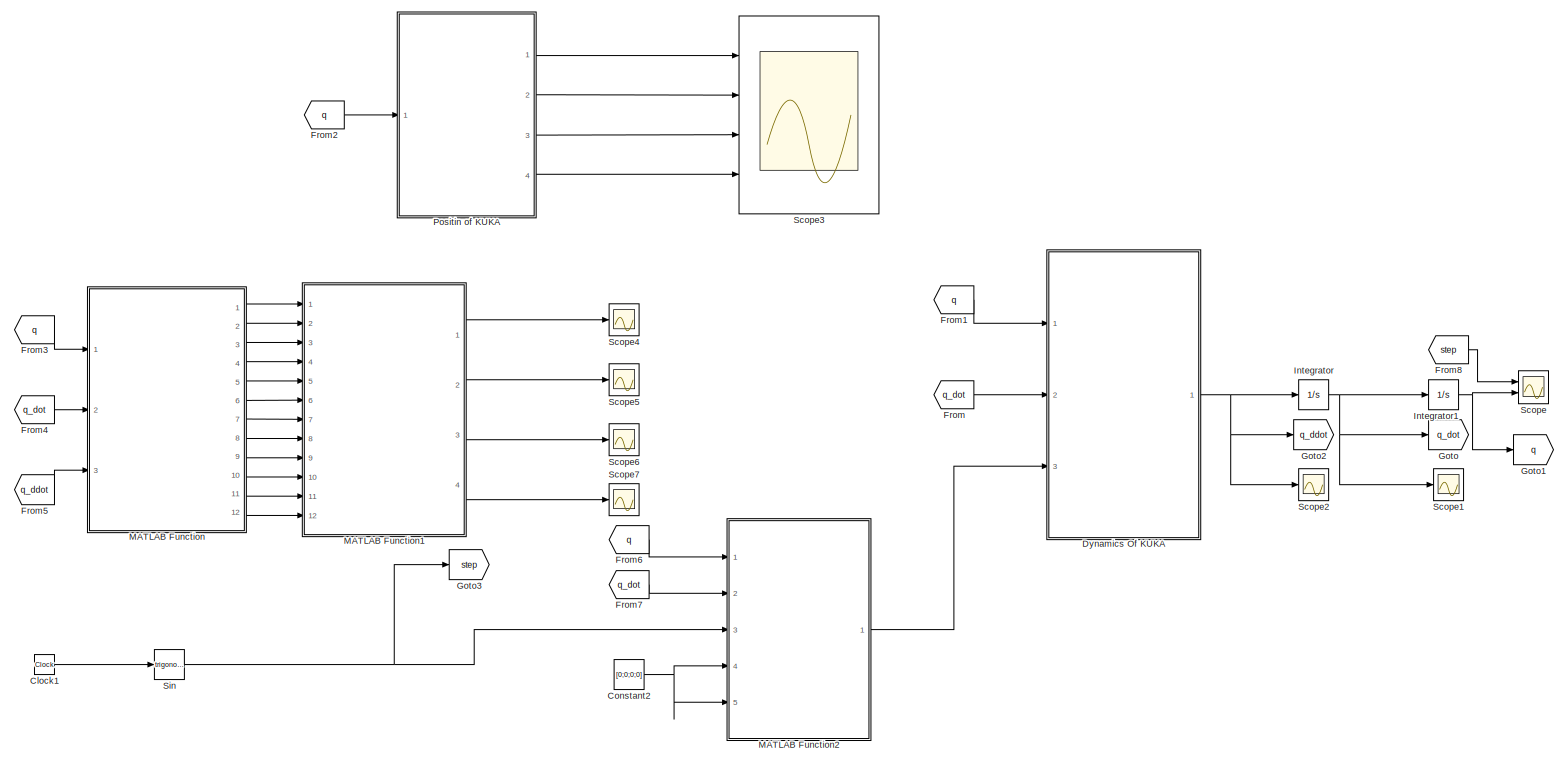
[diagram: root canvas - part 1/2, most of the canvas]
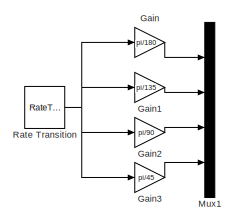
[diagram: root canvas - part 2/2, bottom left region]
MODEL slx_0f7cdd0545b8
KIND model
CONFIG AbsTol = auto
CONFIG EnableMultiTasking = off
CONFIG FixedStep = auto
CONFIG MaxStep = auto
CONFIG MinStep = auto
CONFIG RelTol = 1e-3
CONFIG SampleTimeConstraint = Unconstrained
CONFIG Solver = VariableStepAuto
CONFIG SolverName = VariableStepAuto
CONFIG StartTime = 0.0
CONFIG StopTime = 20
WORKSPACE source: MAT-file member
WORKSPACE MCOS: class17 (value not decoded)
WORKSPACE MCOS: class17 (value not decoded)
WORKSPACE MCOS: class17 (value not decoded)
BLOCK [Clock] Clock1
BLOCK [Constant] Constant2
  Value = [0;0;0;0]
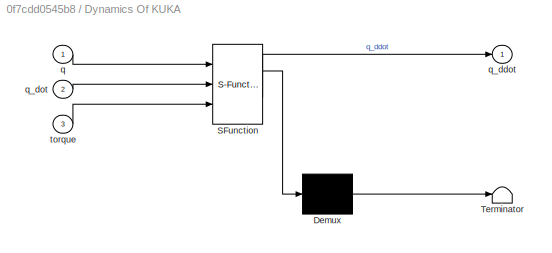
BLOCK [SubSystem] Dynamics Of KUKA
  ErrorFcn = Stateflow.Translate.translate
  PermitHierarchicalResolution = ExplicitOnly
  Ports = [3, 1]
  RequestExecContextInheritance = off
  SFBlockType = MATLAB Function
  TreatAsAtomicUnit = on
BLOCK [Demux] Dynamics Of KUKA/ Demux 
  Outputs = 1
  Ports = [1, 1]
BLOCK [S-Function] Dynamics Of KUKA/ SFunction 
  EnableBusSupport = on
  FunctionName = sf_sfun
  PortCounts = [3 2]
  Ports = [3, 2]
  SFcnIsStateOwnerBlock = off
  SFunctionDeploymentMode = off
  Tag = Stateflow S-Function kuka_sim 2
BLOCK [Terminator] Dynamics Of KUKA/ Terminator 
BLOCK [Inport] Dynamics Of KUKA/q
  IconDisplay = Port number
BLOCK [Outport] Dynamics Of KUKA/q_ddot
  IconDisplay = Port number
BLOCK [Inport] Dynamics Of KUKA/q_dot
  IconDisplay = Port number
  Port = 2
BLOCK [Inport] Dynamics Of KUKA/torque
  IconDisplay = Port number
  Port = 3
BLOCK [From] From
  GotoTag = q_dot
BLOCK [From] From1
  GotoTag = q
BLOCK [From] From2
  GotoTag = q
BLOCK [From] From3
  GotoTag = q
BLOCK [From] From4
  GotoTag = q_dot
BLOCK [From] From5
  GotoTag = q_ddot
BLOCK [From] From6
  GotoTag = q
BLOCK [From] From7
  GotoTag = q_dot
BLOCK [From] From8
  GotoTag = step
BLOCK [Gain] Gain
  Gain = pi/180
  OutDataTypeStr = Inherit: Inherit via internal rule
  ParamDataTypeStr = Inherit: Inherit via internal rule
  SaturateOnIntegerOverflow = off
BLOCK [Gain] Gain1
  Gain = pi/135
  OutDataTypeStr = Inherit: Inherit via internal rule
  ParamDataTypeStr = Inherit: Inherit via internal rule
  SaturateOnIntegerOverflow = off
BLOCK [Gain] Gain2
  Gain = pi/90
  OutDataTypeStr = Inherit: Inherit via internal rule
  ParamDataTypeStr = Inherit: Inherit via internal rule
  SaturateOnIntegerOverflow = off
BLOCK [Gain] Gain3
  Gain = pi/45
  OutDataTypeStr = Inherit: Inherit via internal rule
  ParamDataTypeStr = Inherit: Inherit via internal rule
  SaturateOnIntegerOverflow = off
BLOCK [Goto] Goto
  GotoTag = q_dot
BLOCK [Goto] Goto1
  GotoTag = q
BLOCK [Goto] Goto2
  GotoTag = q_ddot
BLOCK [Goto] Goto3
  GotoTag = step
BLOCK [Integrator] Integrator
  InitialCondition = [0;0;0;0;]
  Ports = [1, 1]
BLOCK [Integrator] Integrator1
  InitialCondition = [1;1;1;1]
  Ports = [1, 1]
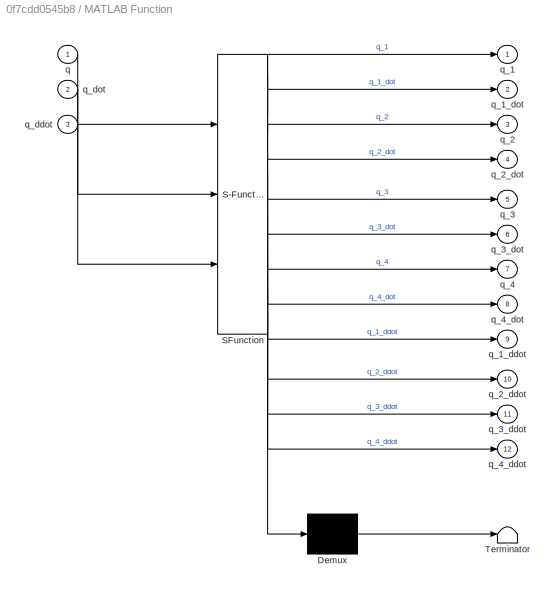
BLOCK [SubSystem] MATLAB Function
  ErrorFcn = Stateflow.Translate.translate
  PermitHierarchicalResolution = ExplicitOnly
  Ports = [3, 12]
  RequestExecContextInheritance = off
  SFBlockType = MATLAB Function
  TreatAsAtomicUnit = on
BLOCK [Demux] MATLAB Function/ Demux 
  Outputs = 1
  Ports = [1, 1]
BLOCK [S-Function] MATLAB Function/ SFunction 
  EnableBusSupport = on
  FunctionName = sf_sfun
  PortCounts = [3 13]
  Ports = [3, 13]
  SFcnIsStateOwnerBlock = off
  SFunctionDeploymentMode = off
  Tag = Stateflow S-Function kuka_sim 3
BLOCK [Terminator] MATLAB Function/ Terminator 
BLOCK [Inport] MATLAB Function/q
  IconDisplay = Port number
BLOCK [Outport] MATLAB Function/q_1
  IconDisplay = Port number
BLOCK [Outport] MATLAB Function/q_1_ddot
  IconDisplay = Port number
  Port = 9
BLOCK [Outport] MATLAB Function/q_1_dot
  IconDisplay = Port number
  Port = 2
BLOCK [Outport] MATLAB Function/q_2
  IconDisplay = Port number
  Port = 3
BLOCK [Outport] MATLAB Function/q_2_ddot
  IconDisplay = Port number
  Port = 10
BLOCK [Outport] MATLAB Function/q_2_dot
  IconDisplay = Port number
  Port = 4
BLOCK [Outport] MATLAB Function/q_3
  IconDisplay = Port number
  Port = 5
BLOCK [Outport] MATLAB Function/q_3_ddot
  IconDisplay = Port number
  Port = 11
BLOCK [Outport] MATLAB Function/q_3_dot
  IconDisplay = Port number
  Port = 6
BLOCK [Outport] MATLAB Function/q_4
  IconDisplay = Port number
  Port = 7
BLOCK [Outport] MATLAB Function/q_4_ddot
  IconDisplay = Port number
  Port = 12
BLOCK [Outport] MATLAB Function/q_4_dot
  IconDisplay = Port number
  Port = 8
BLOCK [Inport] MATLAB Function/q_ddot
  IconDisplay = Port number
  Port = 3
BLOCK [Inport] MATLAB Function/q_dot
  IconDisplay = Port number
  Port = 2
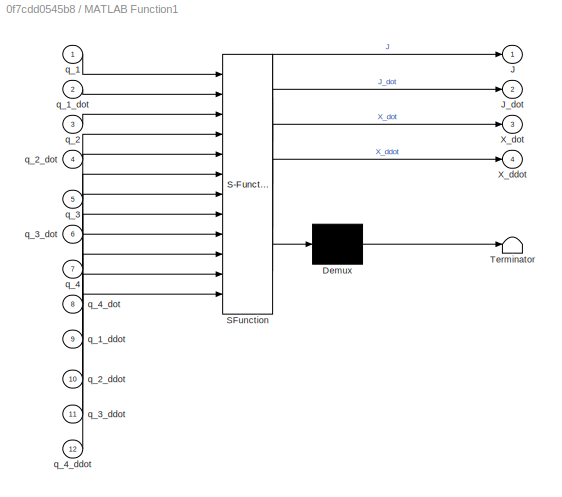
BLOCK [SubSystem] MATLAB Function1
  ErrorFcn = Stateflow.Translate.translate
  PermitHierarchicalResolution = ExplicitOnly
  Ports = [12, 4]
  RequestExecContextInheritance = off
  SFBlockType = MATLAB Function
  TreatAsAtomicUnit = on
BLOCK [Demux] MATLAB Function1/ Demux 
  Outputs = 1
  Ports = [1, 1]
BLOCK [S-Function] MATLAB Function1/ SFunction 
  EnableBusSupport = on
  FunctionName = sf_sfun
  PortCounts = [12 5]
  Ports = [12, 5]
  SFcnIsStateOwnerBlock = off
  SFunctionDeploymentMode = off
  Tag = Stateflow S-Function kuka_sim 4
BLOCK [Terminator] MATLAB Function1/ Terminator 
BLOCK [Outport] MATLAB Function1/J
  IconDisplay = Port number
BLOCK [Outport] MATLAB Function1/J_dot
  IconDisplay = Port number
  Port = 2
BLOCK [Outport] MATLAB Function1/X_ddot
  IconDisplay = Port number
  Port = 4
BLOCK [Outport] MATLAB Function1/X_dot
  IconDisplay = Port number
  Port = 3
BLOCK [Inport] MATLAB Function1/q_1
  IconDisplay = Port number
BLOCK [Inport] MATLAB Function1/q_1_ddot
  IconDisplay = Port number
  Port = 9
BLOCK [Inport] MATLAB Function1/q_1_dot
  IconDisplay = Port number
  Port = 2
BLOCK [Inport] MATLAB Function1/q_2
  IconDisplay = Port number
  Port = 3
BLOCK [Inport] MATLAB Function1/q_2_ddot
  IconDisplay = Port number
  Port = 10
BLOCK [Inport] MATLAB Function1/q_2_dot
  IconDisplay = Port number
  Port = 4
BLOCK [Inport] MATLAB Function1/q_3
  IconDisplay = Port number
  Port = 5
BLOCK [Inport] MATLAB Function1/q_3_ddot
  IconDisplay = Port number
  Port = 11
BLOCK [Inport] MATLAB Function1/q_3_dot
  IconDisplay = Port number
  Port = 6
BLOCK [Inport] MATLAB Function1/q_4
  IconDisplay = Port number
  Port = 7
BLOCK [Inport] MATLAB Function1/q_4_ddot
  IconDisplay = Port number
  Port = 12
BLOCK [Inport] MATLAB Function1/q_4_dot
  IconDisplay = Port number
  Port = 8
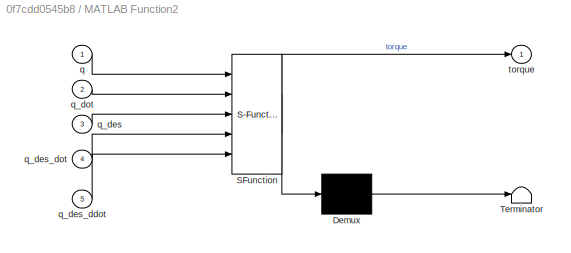
BLOCK [SubSystem] MATLAB Function2
  ErrorFcn = Stateflow.Translate.translate
  PermitHierarchicalResolution = ExplicitOnly
  Ports = [5, 1]
  RequestExecContextInheritance = off
  SFBlockType = MATLAB Function
  TreatAsAtomicUnit = on
BLOCK [Demux] MATLAB Function2/ Demux 
  Outputs = 1
  Ports = [1, 1]
BLOCK [S-Function] MATLAB Function2/ SFunction 
  EnableBusSupport = on
  FunctionName = sf_sfun
  PortCounts = [5 2]
  Ports = [5, 2]
  SFcnIsStateOwnerBlock = off
  SFunctionDeploymentMode = off
  Tag = Stateflow S-Function kuka_sim 5
BLOCK [Terminator] MATLAB Function2/ Terminator 
BLOCK [Inport] MATLAB Function2/q
  IconDisplay = Port number
BLOCK [Inport] MATLAB Function2/q_des
  IconDisplay = Port number
  Port = 3
BLOCK [Inport] MATLAB Function2/q_des_ddot
  IconDisplay = Port number
  Port = 5
BLOCK [Inport] MATLAB Function2/q_des_dot
  IconDisplay = Port number
  Port = 4
BLOCK [Inport] MATLAB Function2/q_dot
  IconDisplay = Port number
  Port = 2
BLOCK [Outport] MATLAB Function2/torque
  IconDisplay = Port number
BLOCK [Mux] Mux1
  DisplayOption = bar
  Ports = [4, 1]
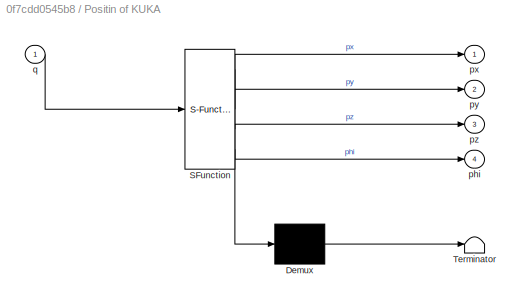
BLOCK [SubSystem] Positin of KUKA 
  ErrorFcn = Stateflow.Translate.translate
  PermitHierarchicalResolution = ExplicitOnly
  Ports = [1, 4]
  RequestExecContextInheritance = off
  SFBlockType = MATLAB Function
  TreatAsAtomicUnit = on
BLOCK [Demux] Positin of KUKA / Demux 
  Outputs = 1
  Ports = [1, 1]
BLOCK [S-Function] Positin of KUKA / SFunction 
  EnableBusSupport = on
  FunctionName = sf_sfun
  PortCounts = [1 5]
  Ports = [1, 5]
  SFcnIsStateOwnerBlock = off
  SFunctionDeploymentMode = off
  Tag = Stateflow S-Function kuka_sim 1
BLOCK [Terminator] Positin of KUKA / Terminator 
BLOCK [Outport] Positin of KUKA /phi
  IconDisplay = Port number
  Port = 4
BLOCK [Outport] Positin of KUKA /px
  IconDisplay = Port number
BLOCK [Outport] Positin of KUKA /py
  IconDisplay = Port number
  Port = 2
BLOCK [Outport] Positin of KUKA /pz
  IconDisplay = Port number
  Port = 3
BLOCK [Inport] Positin of KUKA /q
  IconDisplay = Port number
BLOCK [RateTransition] Rate Transition
  OutPortSampleTime = 4
BLOCK [Scope] Scope
  Floating = off
  NumInputPorts = 2
  Ports = [2]
  ScopeSpecificationString = Simulink.scopes.TimeScopeBlockCfg('CurrentConfiguration', extmgr.ConfigurationSet(extmgr.Configuration('Core','General UI',true,'FigureColor',[0.862745098039216 0.862745098039216 0.862745098039216]),extmgr.Configuration('Core','Source UI',true),extmgr.Configuration('Sources','WiredSimulink',true,'DataLoggingSaveFormat','Array','DataLoggingDecimation','1','DataLoggingDecimateData',true,'DataLogging...<+2360ch>
BLOCK [Scope] Scope1
  Floating = off
  NumInputPorts = 1
  Ports = [1]
  ScopeSpecificationString = Simulink.scopes.TimeScopeBlockCfg('CurrentConfiguration', extmgr.ConfigurationSet(extmgr.Configuration('Core','General UI',true,'FigureColor',[0.862745098039216 0.862745098039216 0.862745098039216]),extmgr.Configuration('Core','Source UI',true),extmgr.Configuration('Sources','WiredSimulink',true,'DataLoggingVariableName','ScopeData2','DataLoggingSaveFormat','Array','DataLoggingDecimation','1','Dat...<+2118ch>
BLOCK [Scope] Scope2
  Floating = off
  NumInputPorts = 1
  Ports = [1]
  ScopeSpecificationString = Simulink.scopes.TimeScopeBlockCfg('CurrentConfiguration', extmgr.ConfigurationSet(extmgr.Configuration('Core','General UI',true,'FigureColor',[0.862745098039216 0.862745098039216 0.862745098039216]),extmgr.Configuration('Core','Source UI',true),extmgr.Configuration('Sources','WiredSimulink',true,'DataLoggingSaveFormat','Array','DataLoggingDecimation','1','DataLoggingDecimateData',true),extmgr.Conf...<+2117ch>
BLOCK [Scope] Scope3
  Floating = off
  NumInputPorts = 4
  Ports = [4]
  ScopeSpecificationString = Simulink.scopes.TimeScopeBlockCfg('CurrentConfiguration', extmgr.ConfigurationSet(extmgr.Configuration('Core','General UI',true),extmgr.Configuration('Core','Source UI',true),extmgr.Configuration('Sources','WiredSimulink',true,'DataLoggingVariableName','ScopeData1'),extmgr.Configuration('Visuals','Time Domain',true,'SerializedDisplays',{struct('MinYLimReal','-17.12002','MaxYLimReal','150.08049','Y...<+1618ch>
BLOCK [Scope] Scope4
  Floating = off
  NumInputPorts = 1
  Ports = [1]
  ScopeSpecificationString = Simulink.scopes.TimeScopeBlockCfg('CurrentConfiguration', extmgr.ConfigurationSet(extmgr.Configuration('Core','General UI',true,'FigureColor',[0.862745098039216 0.862745098039216 0.862745098039216]),extmgr.Configuration('Core','Source UI',true),extmgr.Configuration('Sources','WiredSimulink',true,'DataLoggingSaveFormat','Array','DataLoggingDecimation','1','DataLoggingDecimateData',true,'DataLogging...<+2829ch>
BLOCK [Scope] Scope5
  Floating = off
  NumInputPorts = 1
  Ports = [1]
  ScopeSpecificationString = Simulink.scopes.TimeScopeBlockCfg('CurrentConfiguration', extmgr.ConfigurationSet(extmgr.Configuration('Core','General UI',true,'FigureColor',[0.862745098039216 0.862745098039216 0.862745098039216]),extmgr.Configuration('Core','Source UI',true),extmgr.Configuration('Sources','WiredSimulink',true,'DataLoggingSaveFormat','Array','DataLoggingDecimation','1','DataLoggingDecimateData',true,'DataLogging...<+2877ch>
BLOCK [Scope] Scope6
  Floating = off
  NumInputPorts = 1
  Ports = [1]
  ScopeSpecificationString = Simulink.scopes.TimeScopeBlockCfg('CurrentConfiguration', extmgr.ConfigurationSet(extmgr.Configuration('Core','General UI',true,'FigureColor',[0.862745098039216 0.862745098039216 0.862745098039216]),extmgr.Configuration('Core','Source UI',true),extmgr.Configuration('Sources','WiredSimulink',true,'DataLoggingSaveFormat','Array','DataLoggingDecimation','1','DataLoggingDecimateData',true,'DataLogging...<+2324ch>
BLOCK [Scope] Scope7
  Floating = off
  NumInputPorts = 1
  Ports = [1]
  ScopeSpecificationString = Simulink.scopes.TimeScopeBlockCfg('CurrentConfiguration', extmgr.ConfigurationSet(extmgr.Configuration('Core','General UI',true,'FigureColor',[0.862745098039216 0.862745098039216 0.862745098039216]),extmgr.Configuration('Core','Source UI',true),extmgr.Configuration('Sources','WiredSimulink',true,'DataLoggingSaveFormat','Array','DataLoggingDecimation','1','DataLoggingDecimateData',true,'DataLogging...<+2311ch>
BLOCK [Trigonometry] Sin
  Ports = [1, 1]
LINE Clock1:1 -> Sin:1
NET Constant2:1 -> MATLAB Function2:4, MATLAB Function2:5
NET Dynamics Of KUKA:1 -> Goto2:1, Integrator:1, Scope2:1
LINE From1:1 -> Dynamics Of KUKA:1
LINE From2:1 -> Positin of KUKA :1
LINE From3:1 -> MATLAB Function:1
LINE From4:1 -> MATLAB Function:2
LINE From5:1 -> MATLAB Function:3
LINE From6:1 -> MATLAB Function2:1
LINE From7:1 -> MATLAB Function2:2
LINE From8:1 -> Scope:1
LINE From:1 -> Dynamics Of KUKA:2
LINE Gain1:1 -> Mux1:2
LINE Gain2:1 -> Mux1:3
LINE Gain3:1 -> Mux1:4
LINE Gain:1 -> Mux1:1
NET Integrator1:1 -> Goto1:1, Scope:2
NET Integrator:1 -> Goto:1, Integrator1:1, Scope1:1
LINE MATLAB Function1:1 -> Scope4:1
LINE MATLAB Function1:2 -> Scope5:1
LINE MATLAB Function1:3 -> Scope6:1
LINE MATLAB Function1:4 -> Scope7:1
LINE MATLAB Function2:1 -> Dynamics Of KUKA:3
LINE MATLAB Function:1 -> MATLAB Function1:1
LINE MATLAB Function:10 -> MATLAB Function1:10
LINE MATLAB Function:11 -> MATLAB Function1:11
LINE MATLAB Function:12 -> MATLAB Function1:12
LINE MATLAB Function:2 -> MATLAB Function1:2
LINE MATLAB Function:3 -> MATLAB Function1:3
LINE MATLAB Function:4 -> MATLAB Function1:4
LINE MATLAB Function:5 -> MATLAB Function1:5
LINE MATLAB Function:6 -> MATLAB Function1:6
LINE MATLAB Function:7 -> MATLAB Function1:7
LINE MATLAB Function:8 -> MATLAB Function1:8
LINE MATLAB Function:9 -> MATLAB Function1:9
LINE Positin of KUKA :1 -> Scope3:1
LINE Positin of KUKA :2 -> Scope3:2
LINE Positin of KUKA :3 -> Scope3:3
LINE Positin of KUKA :4 -> Scope3:4
NET Rate Transition:1 -> Gain1:1, Gain2:1, Gain3:1, Gain:1
NET Sin:1 -> Goto3:1, MATLAB Function2:3
note: NET lines group one-source signal fan-out (src -> all destinations, sorted); 1:1 wires keep LINE
CHART Positin of KUKA
 states=1 transitions=1
  STATE_LABEL 'eML_blk_kernel()'
  STATE_LABEL 'SCRIPT:\nfunction [px,py,pz,phi] = fcn(q)\n%#codegen\n\nq_1 = q(1);\nq_2 = q(2);\nq_3 = q(3);\nq_4 = q(4);\n\npx = -0.4*cos(q_1)*sin(q_2)\npy = -0.4*sin(q_1)*sin(q_2)\npz = 0.4*cos(q_2);\nphi = q(1) + q(2) + q(3) + q(4);\n'
CHART Dynamics Of KUKA states=1 transitions=1
  STATE_LABEL 'eML_blk_kernel()'
  STATE_LABEL 'SCRIPT:\nfunction q_ddot = fcn(q,q_dot,torque)\n\nq_1=q(1);\nq_2=q(2);\nq_3=q(3);\nq_4=q(4);\n\nq_1_dot=q_dot(1);\nq_2_dot=q_dot(2);\nq_3_dot=q_dot(3);\nq_4_dot=q_dot(4);\n\n\nm11=cos(q_2)*(0.00415795377963*cos(q_2) + 0.005756821258825*sin(q_2) + 0.001993178216*cos(q_3)*sin(q_2) - 0.03195052591232*sin(q_2)*sin(q_3) + 1.0*cos(q_4)*(0.01524699328022*cos(q_2)*cos(q_4) - 0.000208924*cos(q_3)*sin(q_2) - 0.0008524847...<+3608ch>'
CHART MATLAB Function states=1 transitions=1
  STATE_LABEL 'eML_blk_kernel()'
  STATE_LABEL 'SCRIPT:\nfunction [q_1,q_1_dot,q_2,q_2_dot,q_3,q_3_dot,q_4,q_4_dot,q_1_ddot,q_2_ddot,q_3_ddot,q_4_ddot] = fcn(q,q_dot,q_ddot)\n%#codegen\n\nq_1 = q(1);\nq_2 = q(2);\nq_3 = q(3);\nq_4 = q(4);\n\nq_1_dot = q_dot(1);\nq_2_dot = q_dot(2);\nq_3_dot = q_dot(3);\nq_4_dot = q_dot(4);\n\nq_1_ddot = q_ddot(1);\nq_2_ddot = q_ddot(2);\nq_3_ddot = q_ddot(3);\nq_4_ddot = q_ddot(4);\n'
CHART MATLAB Function1 states=1 transitions=1
  STATE_LABEL 'eML_blk_kernel()'
  STATE_LABEL 'SCRIPT:\nfunction [J,J_dot,X_dot,X_ddot] = fcn(q_1,q_1_dot,q_2,q_2_dot,q_3,q_3_dot,q_4,q_4_dot,q_1_ddot,q_2_ddot,q_3_ddot,q_4_ddot)\n\nj1=[ 0.4*sin(q_1)*sin(q_2), -0.4*cos(q_1)*cos(q_2), 0, 0];\nj2=[ -0.4*cos(q_1)*sin(q_2), -0.4*cos(q_2)*sin(q_1), 0, 0];\nj3=[ 0, - 0.4*cos(q_1)^2*sin(q_2) - 0.4*sin(q_1)^2*sin(q_2), 0, 0];\nj4=[ 0, 1.0*sin(q_1), -1.0*cos(q_1)*sin(q_2), - 1.0*cos(q_3)*sin(q_1) - 1.0*cos(q...<+1473ch>'
CHART MATLAB Function2 states=1 transitions=1
  STATE_LABEL 'eML_blk_kernel()'
  STATE_LABEL 'SCRIPT:\nfunction torque = fcn(q,q_dot,q_des,q_des_dot,q_des_ddot)\n\nq_1 = q(1);\nq_2 = q(2);\nq_3 = q(3);\nq_4 = q(4);\n\nq_1_dot = q_dot(1);\nq_2_dot = q_dot(2);\nq_3_dot = q_dot(3);\nq_4_dot = q_dot(4);\n\n% q_1_ddot = q_ddot(1);\n% q_2_ddot = q_ddot(2);\n% q_3_ddot = q_ddot(3);\n% q_4_ddot = q_ddot(4);\n\nm11=cos(q_2)*(0.00415795377963*cos(q_2) + 0.005756821258825*sin(q_2) + 0.001993178216*cos(q_3)*sin(q_2) - ...<+3608ch>'
